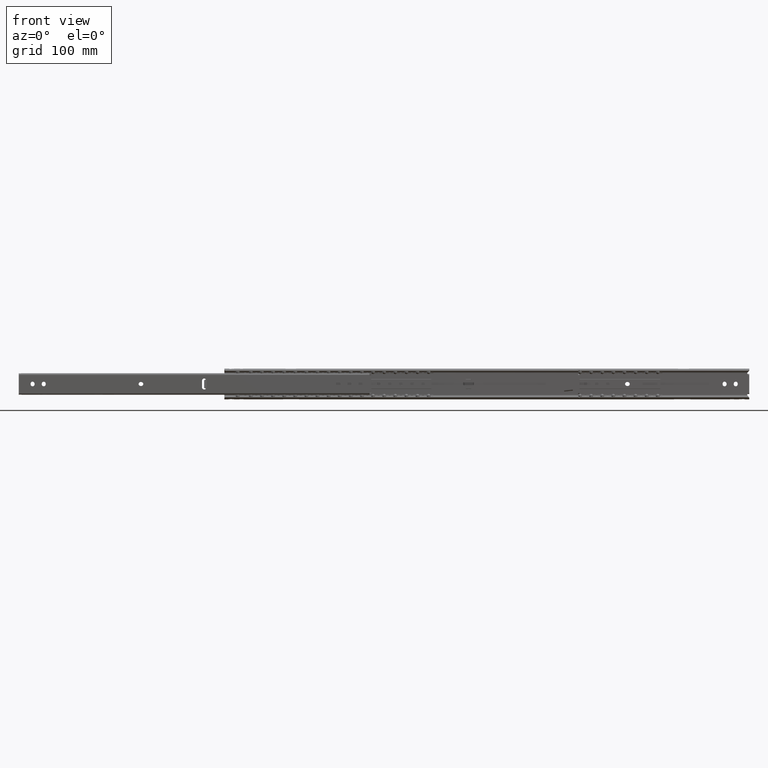
[diagram: clean part render]
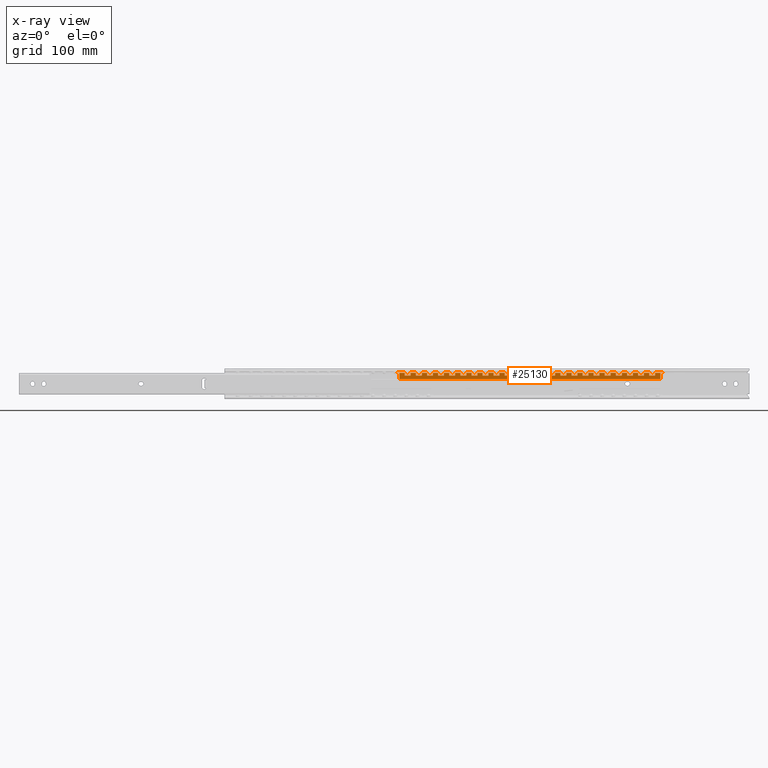
[diagram: x-ray — body ghosted, one internal face saturated and labeled with its STEP entity id]
A machine part, front view, then the same camera in x-ray: the body is ghosted and one INTERNAL B-rep face — a face not visible from any outside direction — is saturated and labeled: STEP entity #25130.
In plain terms, the highlighted face is a freeform B-spline surface patch.
Its self-contained STEP definition (entity closure, byte-faithful):
#8518=CARTESIAN_POINT('',(-2.100000000000045,-5.750000000000000,399.750000000000000));
#8519=VERTEX_POINT('',#8518);
#8650=CARTESIAN_POINT('',(-2.100000000000045,-12.611864406779700,399.750000000000000));
#8651=VERTEX_POINT('',#8650);
#8657=CARTESIAN_POINT('',(-2.100000000000045,-5.750000000000000,399.750000000000000));
#8658=CARTESIAN_POINT('',(-2.100000000000045,-12.611864406779700,399.750000000000000));
#8659=QUASI_UNIFORM_CURVE('',1,(#8657,#8658),.UNSPECIFIED.,.F.,.U.);
#8660=EDGE_CURVE('',#8519,#8651,#8659,.T.);
#8670=CARTESIAN_POINT('',(-2.100000000000045,-12.611864406779640,101.650000000000010));
#8671=VERTEX_POINT('',#8670);
#8794=CARTESIAN_POINT('',(-2.100000000000045,-5.750000000000000,101.650000000000010));
#8795=VERTEX_POINT('',#8794);
#8809=CARTESIAN_POINT('',(-2.100000000000045,-12.611864406779640,101.650000000000010));
#8810=CARTESIAN_POINT('',(-2.100000000000045,-5.750000000000000,101.650000000000010));
#8811=QUASI_UNIFORM_CURVE('',1,(#8809,#8810),.UNSPECIFIED.,.F.,.U.);
#8812=EDGE_CURVE('',#8671,#8795,#8811,.T.);
#9044=CARTESIAN_POINT('',(-2.100000000000045,-12.648548000000000,107.650000000000010));
#9045=VERTEX_POINT('',#9044);
#9046=CARTESIAN_POINT('',(-2.100000000000000,-9.500000000000000,107.650000000000010));
#9047=VERTEX_POINT('',#9046);
#9048=CARTESIAN_POINT('',(-2.100000000000045,-12.648548000000000,107.650000000000010));
#9049=CARTESIAN_POINT('',(-2.100000000000000,-9.500000000000000,107.650000000000010));
#9050=QUASI_UNIFORM_CURVE('',1,(#9048,#9049),.UNSPECIFIED.,.F.,.U.);
#9051=EDGE_CURVE('',#9045,#9047,#9050,.T.);
#9101=CARTESIAN_POINT('',(-2.100000000000000,-9.500000000000000,114.349999999999990));
#9102=VERTEX_POINT('',#9101);
#9103=CARTESIAN_POINT('',(-2.100000000000045,-12.648548000000000,114.349999999999990));
#9104=VERTEX_POINT('',#9103);
#9105=CARTESIAN_POINT('',(-2.100000000000000,-9.500000000000000,114.349999999999990));
#9106=CARTESIAN_POINT('',(-2.100000000000045,-12.648548000000000,114.349999999999990));
#9107=QUASI_UNIFORM_CURVE('',1,(#9105,#9106),.UNSPECIFIED.,.F.,.U.);
#9108=EDGE_CURVE('',#9102,#9104,#9107,.T.);
#9230=CARTESIAN_POINT('',(-2.100000000000000,-9.500000000000000,127.050000000000000));
#9231=VERTEX_POINT('',#9230);
#9232=CARTESIAN_POINT('',(-2.100000000000045,-12.648548000000000,127.050000000000000));
#9233=VERTEX_POINT('',#9232);
#9234=CARTESIAN_POINT('',(-2.100000000000000,-9.500000000000000,127.050000000000000));
#9235=CARTESIAN_POINT('',(-2.100000000000045,-12.648548000000000,127.050000000000000));
#9236=QUASI_UNIFORM_CURVE('',1,(#9234,#9235),.UNSPECIFIED.,.F.,.U.);
#9237=EDGE_CURVE('',#9231,#9233,#9236,.T.);
#9287=CARTESIAN_POINT('',(-2.100000000000045,-12.648548000000000,120.349999999999990));
#9288=VERTEX_POINT('',#9287);
#9289=CARTESIAN_POINT('',(-2.100000000000000,-9.500000000000000,120.349999999999990));
#9290=VERTEX_POINT('',#9289);
#9291=CARTESIAN_POINT('',(-2.100000000000045,-12.648548000000000,120.349999999999990));
#9292=CARTESIAN_POINT('',(-2.100000000000000,-9.500000000000000,120.349999999999990));
#9293=QUASI_UNIFORM_CURVE('',1,(#9291,#9292),.UNSPECIFIED.,.F.,.U.);
#9294=EDGE_CURVE('',#9288,#9290,#9293,.T.);
#9602=CARTESIAN_POINT('',(-2.100000000000000,-9.500000000000000,139.750000000000000));
#9603=VERTEX_POINT('',#9602);
#9604=CARTESIAN_POINT('',(-2.100000000000045,-12.648548000000000,139.750000000000000));
#9605=VERTEX_POINT('',#9604);
#9606=CARTESIAN_POINT('',(-2.100000000000000,-9.500000000000000,139.750000000000000));
#9607=CARTESIAN_POINT('',(-2.100000000000045,-12.648548000000000,139.750000000000000));
#9608=QUASI_UNIFORM_CURVE('',1,(#9606,#9607),.UNSPECIFIED.,.F.,.U.);
#9609=EDGE_CURVE('',#9603,#9605,#9608,.T.);
#9659=CARTESIAN_POINT('',(-2.100000000000045,-12.648548000000000,133.050000000000010));
#9660=VERTEX_POINT('',#9659);
#9661=CARTESIAN_POINT('',(-2.100000000000000,-9.500000000000000,133.050000000000010));
#9662=VERTEX_POINT('',#9661);
#9663=CARTESIAN_POINT('',(-2.100000000000045,-12.648548000000000,133.050000000000010));
#9664=CARTESIAN_POINT('',(-2.100000000000000,-9.500000000000000,133.050000000000010));
#9665=QUASI_UNIFORM_CURVE('',1,(#9663,#9664),.UNSPECIFIED.,.F.,.U.);
#9666=EDGE_CURVE('',#9660,#9662,#9665,.T.);
#9974=CARTESIAN_POINT('',(-2.100000000000000,-9.500000000000000,152.449999999999990));
#9975=VERTEX_POINT('',#9974);
#9976=CARTESIAN_POINT('',(-2.100000000000045,-12.648548000000000,152.449999999999990));
#9977=VERTEX_POINT('',#9976);
#9978=CARTESIAN_POINT('',(-2.100000000000000,-9.500000000000000,152.449999999999990));
#9979=CARTESIAN_POINT('',(-2.100000000000045,-12.648548000000000,152.449999999999990));
#9980=QUASI_UNIFORM_CURVE('',1,(#9978,#9979),.UNSPECIFIED.,.F.,.U.);
#9981=EDGE_CURVE('',#9975,#9977,#9980,.T.);
#10031=CARTESIAN_POINT('',(-2.100000000000045,-12.648548000000000,145.750000000000000));
#10032=VERTEX_POINT('',#10031);
#10033=CARTESIAN_POINT('',(-2.100000000000000,-9.500000000000000,145.750000000000000));
#10034=VERTEX_POINT('',#10033);
#10035=CARTESIAN_POINT('',(-2.100000000000045,-12.648548000000000,145.750000000000000));
#10036=CARTESIAN_POINT('',(-2.100000000000000,-9.500000000000000,145.750000000000000));
#10037=QUASI_UNIFORM_CURVE('',1,(#10035,#10036),.UNSPECIFIED.,.F.,.U.);
#10038=EDGE_CURVE('',#10032,#10034,#10037,.T.);
#10346=CARTESIAN_POINT('',(-2.100000000000000,-9.500000000000000,165.150000000000010));
#10347=VERTEX_POINT('',#10346);
#10348=CARTESIAN_POINT('',(-2.100000000000045,-12.648548000000000,165.150000000000010));
#10349=VERTEX_POINT('',#10348);
#10350=CARTESIAN_POINT('',(-2.100000000000000,-9.500000000000000,165.150000000000010));
#10351=CARTESIAN_POINT('',(-2.100000000000045,-12.648548000000000,165.150000000000010));
#10352=QUASI_UNIFORM_CURVE('',1,(#10350,#10351),.UNSPECIFIED.,.F.,.U.);
#10353=EDGE_CURVE('',#10347,#10349,#10352,.T.);
#10403=CARTESIAN_POINT('',(-2.100000000000045,-12.648548000000000,158.449999999999990));
#10404=VERTEX_POINT('',#10403);
#10405=CARTESIAN_POINT('',(-2.100000000000000,-9.500000000000000,158.449999999999990));
#10406=VERTEX_POINT('',#10405);
#10407=CARTESIAN_POINT('',(-2.100000000000045,-12.648548000000000,158.449999999999990));
#10408=CARTESIAN_POINT('',(-2.100000000000000,-9.500000000000000,158.449999999999990));
#10409=QUASI_UNIFORM_CURVE('',1,(#10407,#10408),.UNSPECIFIED.,.F.,.U.);
#10410=EDGE_CURVE('',#10404,#10406,#10409,.T.);
#10718=CARTESIAN_POINT('',(-2.100000000000000,-9.500000000000000,177.849999999999990));
#10719=VERTEX_POINT('',#10718);
#10720=CARTESIAN_POINT('',(-2.100000000000045,-12.648548000000000,177.849999999999990));
#10721=VERTEX_POINT('',#10720);
#10722=CARTESIAN_POINT('',(-2.100000000000000,-9.500000000000000,177.849999999999990));
#10723=CARTESIAN_POINT('',(-2.100000000000045,-12.648548000000000,177.849999999999990));
#10724=QUASI_UNIFORM_CURVE('',1,(#10722,#10723),.UNSPECIFIED.,.F.,.U.);
#10725=EDGE_CURVE('',#10719,#10721,#10724,.T.);
#10775=CARTESIAN_POINT('',(-2.100000000000045,-12.648548000000000,171.150000000000010));
#10776=VERTEX_POINT('',#10775);
#10777=CARTESIAN_POINT('',(-2.100000000000000,-9.500000000000000,171.150000000000010));
#10778=VERTEX_POINT('',#10777);
#10779=CARTESIAN_POINT('',(-2.100000000000045,-12.648548000000000,171.150000000000010));
#10780=CARTESIAN_POINT('',(-2.100000000000000,-9.500000000000000,171.150000000000010));
#10781=QUASI_UNIFORM_CURVE('',1,(#10779,#10780),.UNSPECIFIED.,.F.,.U.);
#10782=EDGE_CURVE('',#10776,#10778,#10781,.T.);
#11090=CARTESIAN_POINT('',(-2.100000000000000,-9.500000000000000,190.550000000000010));
#11091=VERTEX_POINT('',#11090);
#11092=CARTESIAN_POINT('',(-2.100000000000045,-12.648548000000000,190.550000000000010));
#11093=VERTEX_POINT('',#11092);
#11094=CARTESIAN_POINT('',(-2.100000000000000,-9.500000000000000,190.550000000000010));
#11095=CARTESIAN_POINT('',(-2.100000000000045,-12.648548000000000,190.550000000000010));
#11096=QUASI_UNIFORM_CURVE('',1,(#11094,#11095),.UNSPECIFIED.,.F.,.U.);
#11097=EDGE_CURVE('',#11091,#11093,#11096,.T.);
#11147=CARTESIAN_POINT('',(-2.100000000000045,-12.648548000000000,183.849999999999990));
#11148=VERTEX_POINT('',#11147);
#11149=CARTESIAN_POINT('',(-2.100000000000000,-9.500000000000000,183.849999999999990));
#11150=VERTEX_POINT('',#11149);
#11151=CARTESIAN_POINT('',(-2.100000000000045,-12.648548000000000,183.849999999999990));
#11152=CARTESIAN_POINT('',(-2.100000000000000,-9.500000000000000,183.849999999999990));
#11153=QUASI_UNIFORM_CURVE('',1,(#11151,#11152),.UNSPECIFIED.,.F.,.U.);
#11154=EDGE_CURVE('',#11148,#11150,#11153,.T.);
#11462=CARTESIAN_POINT('',(-2.100000000000000,-9.500000000000000,203.250000000000000));
#11463=VERTEX_POINT('',#11462);
#11464=CARTESIAN_POINT('',(-2.100000000000045,-12.648548000000000,203.250000000000000));
#11465=VERTEX_POINT('',#11464);
#11466=CARTESIAN_POINT('',(-2.100000000000000,-9.500000000000000,203.250000000000000));
#11467=CARTESIAN_POINT('',(-2.100000000000045,-12.648548000000000,203.250000000000000));
#11468=QUASI_UNIFORM_CURVE('',1,(#11466,#11467),.UNSPECIFIED.,.F.,.U.);
#11469=EDGE_CURVE('',#11463,#11465,#11468,.T.);
#11519=CARTESIAN_POINT('',(-2.100000000000045,-12.648548000000000,196.550000000000010));
#11520=VERTEX_POINT('',#11519);
#11521=CARTESIAN_POINT('',(-2.100000000000000,-9.500000000000000,196.550000000000010));
#11522=VERTEX_POINT('',#11521);
#11523=CARTESIAN_POINT('',(-2.100000000000045,-12.648548000000000,196.550000000000010));
#11524=CARTESIAN_POINT('',(-2.100000000000000,-9.500000000000000,196.550000000000010));
#11525=QUASI_UNIFORM_CURVE('',1,(#11523,#11524),.UNSPECIFIED.,.F.,.U.);
#11526=EDGE_CURVE('',#11520,#11522,#11525,.T.);
#11834=CARTESIAN_POINT('',(-2.100000000000000,-9.500000000000000,215.949999999999990));
#11835=VERTEX_POINT('',#11834);
#11836=CARTESIAN_POINT('',(-2.100000000000045,-12.648548000000000,215.949999999999990));
#11837=VERTEX_POINT('',#11836);
#11838=CARTESIAN_POINT('',(-2.100000000000000,-9.500000000000000,215.949999999999990));
#11839=CARTESIAN_POINT('',(-2.100000000000045,-12.648548000000000,215.949999999999990));
#11840=QUASI_UNIFORM_CURVE('',1,(#11838,#11839),.UNSPECIFIED.,.F.,.U.);
#11841=EDGE_CURVE('',#11835,#11837,#11840,.T.);
#11891=CARTESIAN_POINT('',(-2.100000000000045,-12.648548000000000,209.250000000000000));
#11892=VERTEX_POINT('',#11891);
#11893=CARTESIAN_POINT('',(-2.100000000000000,-9.500000000000000,209.250000000000000));
#11894=VERTEX_POINT('',#11893);
#11895=CARTESIAN_POINT('',(-2.100000000000045,-12.648548000000000,209.250000000000000));
#11896=CARTESIAN_POINT('',(-2.100000000000000,-9.500000000000000,209.250000000000000));
#11897=QUASI_UNIFORM_CURVE('',1,(#11895,#11896),.UNSPECIFIED.,.F.,.U.);
#11898=EDGE_CURVE('',#11892,#11894,#11897,.T.);
#12206=CARTESIAN_POINT('',(-2.100000000000000,-9.500000000000000,228.650000000000010));
#12207=VERTEX_POINT('',#12206);
#12208=CARTESIAN_POINT('',(-2.100000000000045,-12.648548000000000,228.650000000000010));
#12209=VERTEX_POINT('',#12208);
#12210=CARTESIAN_POINT('',(-2.100000000000000,-9.500000000000000,228.650000000000010));
#12211=CARTESIAN_POINT('',(-2.100000000000045,-12.648548000000000,228.650000000000010));
#12212=QUASI_UNIFORM_CURVE('',1,(#12210,#12211),.UNSPECIFIED.,.F.,.U.);
#12213=EDGE_CURVE('',#12207,#12209,#12212,.T.);
#12263=CARTESIAN_POINT('',(-2.100000000000045,-12.648548000000000,221.949999999999990));
#12264=VERTEX_POINT('',#12263);
#12265=CARTESIAN_POINT('',(-2.100000000000000,-9.500000000000000,221.949999999999990));
#12266=VERTEX_POINT('',#12265);
#12267=CARTESIAN_POINT('',(-2.100000000000045,-12.648548000000000,221.949999999999990));
#12268=CARTESIAN_POINT('',(-2.100000000000000,-9.500000000000000,221.949999999999990));
#12269=QUASI_UNIFORM_CURVE('',1,(#12267,#12268),.UNSPECIFIED.,.F.,.U.);
#12270=EDGE_CURVE('',#12264,#12266,#12269,.T.);
#12578=CARTESIAN_POINT('',(-2.100000000000000,-9.500000000000000,241.349999999999990));
#12579=VERTEX_POINT('',#12578);
#12580=CARTESIAN_POINT('',(-2.100000000000045,-12.648548000000000,241.349999999999990));
#12581=VERTEX_POINT('',#12580);
#12582=CARTESIAN_POINT('',(-2.100000000000000,-9.500000000000000,241.349999999999990));
#12583=CARTESIAN_POINT('',(-2.100000000000045,-12.648548000000000,241.349999999999990));
#12584=QUASI_UNIFORM_CURVE('',1,(#12582,#12583),.UNSPECIFIED.,.F.,.U.);
#12585=EDGE_CURVE('',#12579,#12581,#12584,.T.);
#12635=CARTESIAN_POINT('',(-2.100000000000045,-12.648548000000000,234.650000000000010));
#12636=VERTEX_POINT('',#12635);
#12637=CARTESIAN_POINT('',(-2.100000000000000,-9.500000000000000,234.650000000000010));
#12638=VERTEX_POINT('',#12637);
#12639=CARTESIAN_POINT('',(-2.100000000000045,-12.648548000000000,234.650000000000010));
#12640=CARTESIAN_POINT('',(-2.100000000000000,-9.500000000000000,234.650000000000010));
#12641=QUASI_UNIFORM_CURVE('',1,(#12639,#12640),.UNSPECIFIED.,.F.,.U.);
#12642=EDGE_CURVE('',#12636,#12638,#12641,.T.);
#12950=CARTESIAN_POINT('',(-2.100000000000000,-9.500000000000000,254.050000000000010));
#12951=VERTEX_POINT('',#12950);
#12952=CARTESIAN_POINT('',(-2.100000000000045,-12.648548000000000,254.050000000000010));
#12953=VERTEX_POINT('',#12952);
#12954=CARTESIAN_POINT('',(-2.100000000000000,-9.500000000000000,254.050000000000010));
#12955=CARTESIAN_POINT('',(-2.100000000000045,-12.648548000000000,254.050000000000010));
#12956=QUASI_UNIFORM_CURVE('',1,(#12954,#12955),.UNSPECIFIED.,.F.,.U.);
#12957=EDGE_CURVE('',#12951,#12953,#12956,.T.);
#13007=CARTESIAN_POINT('',(-2.100000000000045,-12.648548000000000,247.349999999999990));
#13008=VERTEX_POINT('',#13007);
#13009=CARTESIAN_POINT('',(-2.100000000000000,-9.500000000000000,247.349999999999990));
#13010=VERTEX_POINT('',#13009);
#13011=CARTESIAN_POINT('',(-2.100000000000045,-12.648548000000000,247.349999999999990));
#13012=CARTESIAN_POINT('',(-2.100000000000000,-9.500000000000000,247.349999999999990));
#13013=QUASI_UNIFORM_CURVE('',1,(#13011,#13012),.UNSPECIFIED.,.F.,.U.);
#13014=EDGE_CURVE('',#13008,#13010,#13013,.T.);
#13322=CARTESIAN_POINT('',(-2.100000000000000,-9.500000000000000,266.750000000000000));
#13323=VERTEX_POINT('',#13322);
#13324=CARTESIAN_POINT('',(-2.100000000000045,-12.648548000000000,266.750000000000000));
#13325=VERTEX_POINT('',#13324);
#13326=CARTESIAN_POINT('',(-2.100000000000000,-9.500000000000000,266.750000000000000));
#13327=CARTESIAN_POINT('',(-2.100000000000045,-12.648548000000000,266.750000000000000));
#13328=QUASI_UNIFORM_CURVE('',1,(#13326,#13327),.UNSPECIFIED.,.F.,.U.);
#13329=EDGE_CURVE('',#13323,#13325,#13328,.T.);
#13379=CARTESIAN_POINT('',(-2.100000000000045,-12.648548000000000,260.050000000000010));
#13380=VERTEX_POINT('',#13379);
#13381=CARTESIAN_POINT('',(-2.100000000000000,-9.500000000000000,260.050000000000010));
#13382=VERTEX_POINT('',#13381);
#13383=CARTESIAN_POINT('',(-2.100000000000045,-12.648548000000000,260.050000000000010));
#13384=CARTESIAN_POINT('',(-2.100000000000000,-9.500000000000000,260.050000000000010));
#13385=QUASI_UNIFORM_CURVE('',1,(#13383,#13384),.UNSPECIFIED.,.F.,.U.);
#13386=EDGE_CURVE('',#13380,#13382,#13385,.T.);
#13694=CARTESIAN_POINT('',(-2.100000000000000,-9.500000000000000,279.449999999999990));
#13695=VERTEX_POINT('',#13694);
#13696=CARTESIAN_POINT('',(-2.100000000000045,-12.648548000000000,279.449999999999990));
#13697=VERTEX_POINT('',#13696);
#13698=CARTESIAN_POINT('',(-2.100000000000000,-9.500000000000000,279.449999999999990));
#13699=CARTESIAN_POINT('',(-2.100000000000045,-12.648548000000000,279.449999999999990));
#13700=QUASI_UNIFORM_CURVE('',1,(#13698,#13699),.UNSPECIFIED.,.F.,.U.);
#13701=EDGE_CURVE('',#13695,#13697,#13700,.T.);
#13751=CARTESIAN_POINT('',(-2.100000000000045,-12.648548000000000,272.750000000000000));
#13752=VERTEX_POINT('',#13751);
#13753=CARTESIAN_POINT('',(-2.100000000000000,-9.500000000000000,272.750000000000000));
#13754=VERTEX_POINT('',#13753);
#13755=CARTESIAN_POINT('',(-2.100000000000045,-12.648548000000000,272.750000000000000));
#13756=CARTESIAN_POINT('',(-2.100000000000000,-9.500000000000000,272.750000000000000));
#13757=QUASI_UNIFORM_CURVE('',1,(#13755,#13756),.UNSPECIFIED.,.F.,.U.);
#13758=EDGE_CURVE('',#13752,#13754,#13757,.T.);
#14066=CARTESIAN_POINT('',(-2.100000000000000,-9.500000000000000,292.149999999999980));
#14067=VERTEX_POINT('',#14066);
#14068=CARTESIAN_POINT('',(-2.100000000000045,-12.648548000000000,292.149999999999980));
#14069=VERTEX_POINT('',#14068);
#14070=CARTESIAN_POINT('',(-2.100000000000000,-9.500000000000000,292.149999999999980));
#14071=CARTESIAN_POINT('',(-2.100000000000045,-12.648548000000000,292.149999999999980));
#14072=QUASI_UNIFORM_CURVE('',1,(#14070,#14071),.UNSPECIFIED.,.F.,.U.);
#14073=EDGE_CURVE('',#14067,#14069,#14072,.T.);
#14123=CARTESIAN_POINT('',(-2.100000000000045,-12.648548000000000,285.449999999999990));
#14124=VERTEX_POINT('',#14123);
#14125=CARTESIAN_POINT('',(-2.100000000000000,-9.500000000000000,285.449999999999990));
#14126=VERTEX_POINT('',#14125);
#14127=CARTESIAN_POINT('',(-2.100000000000045,-12.648548000000000,285.449999999999990));
#14128=CARTESIAN_POINT('',(-2.100000000000000,-9.500000000000000,285.449999999999990));
#14129=QUASI_UNIFORM_CURVE('',1,(#14127,#14128),.UNSPECIFIED.,.F.,.U.);
#14130=EDGE_CURVE('',#14124,#14126,#14129,.T.);
#14438=CARTESIAN_POINT('',(-2.100000000000000,-9.500000000000000,304.850000000000020));
#14439=VERTEX_POINT('',#14438);
#14440=CARTESIAN_POINT('',(-2.100000000000045,-12.648548000000000,304.850000000000020));
#14441=VERTEX_POINT('',#14440);
#14442=CARTESIAN_POINT('',(-2.100000000000000,-9.500000000000000,304.850000000000020));
#14443=CARTESIAN_POINT('',(-2.100000000000045,-12.648548000000000,304.850000000000020));
#14444=QUASI_UNIFORM_CURVE('',1,(#14442,#14443),.UNSPECIFIED.,.F.,.U.);
#14445=EDGE_CURVE('',#14439,#14441,#14444,.T.);
#14495=CARTESIAN_POINT('',(-2.100000000000045,-12.648548000000000,298.149999999999980));
#14496=VERTEX_POINT('',#14495);
#14497=CARTESIAN_POINT('',(-2.100000000000000,-9.500000000000000,298.149999999999980));
#14498=VERTEX_POINT('',#14497);
#14499=CARTESIAN_POINT('',(-2.100000000000045,-12.648548000000000,298.149999999999980));
#14500=CARTESIAN_POINT('',(-2.100000000000000,-9.500000000000000,298.149999999999980));
#14501=QUASI_UNIFORM_CURVE('',1,(#14499,#14500),.UNSPECIFIED.,.F.,.U.);
#14502=EDGE_CURVE('',#14496,#14498,#14501,.T.);
#14810=CARTESIAN_POINT('',(-2.100000000000000,-9.500000000000000,317.550000000000010));
#14811=VERTEX_POINT('',#14810);
#14812=CARTESIAN_POINT('',(-2.100000000000045,-12.648548000000000,317.550000000000010));
#14813=VERTEX_POINT('',#14812);
#14814=CARTESIAN_POINT('',(-2.100000000000000,-9.500000000000000,317.550000000000010));
#14815=CARTESIAN_POINT('',(-2.100000000000045,-12.648548000000000,317.550000000000010));
#14816=QUASI_UNIFORM_CURVE('',1,(#14814,#14815),.UNSPECIFIED.,.F.,.U.);
#14817=EDGE_CURVE('',#14811,#14813,#14816,.T.);
#14867=CARTESIAN_POINT('',(-2.100000000000045,-12.648548000000000,310.850000000000020));
#14868=VERTEX_POINT('',#14867);
#14869=CARTESIAN_POINT('',(-2.100000000000000,-9.500000000000000,310.850000000000020));
#14870=VERTEX_POINT('',#14869);
#14871=CARTESIAN_POINT('',(-2.100000000000045,-12.648548000000000,310.850000000000020));
#14872=CARTESIAN_POINT('',(-2.100000000000000,-9.500000000000000,310.850000000000020));
#14873=QUASI_UNIFORM_CURVE('',1,(#14871,#14872),.UNSPECIFIED.,.F.,.U.);
#14874=EDGE_CURVE('',#14868,#14870,#14873,.T.);
#15182=CARTESIAN_POINT('',(-2.100000000000000,-9.500000000000000,330.250000000000000));
#15183=VERTEX_POINT('',#15182);
#15184=CARTESIAN_POINT('',(-2.100000000000045,-12.648548000000000,330.250000000000000));
#15185=VERTEX_POINT('',#15184);
#15186=CARTESIAN_POINT('',(-2.100000000000000,-9.500000000000000,330.250000000000000));
#15187=CARTESIAN_POINT('',(-2.100000000000045,-12.648548000000000,330.250000000000000));
#15188=QUASI_UNIFORM_CURVE('',1,(#15186,#15187),.UNSPECIFIED.,.F.,.U.);
#15189=EDGE_CURVE('',#15183,#15185,#15188,.T.);
#15239=CARTESIAN_POINT('',(-2.100000000000045,-12.648548000000000,323.550000000000010));
#15240=VERTEX_POINT('',#15239);
#15241=CARTESIAN_POINT('',(-2.100000000000000,-9.500000000000000,323.550000000000010));
#15242=VERTEX_POINT('',#15241);
#15243=CARTESIAN_POINT('',(-2.100000000000045,-12.648548000000000,323.550000000000010));
#15244=CARTESIAN_POINT('',(-2.100000000000000,-9.500000000000000,323.550000000000010));
#15245=QUASI_UNIFORM_CURVE('',1,(#15243,#15244),.UNSPECIFIED.,.F.,.U.);
#15246=EDGE_CURVE('',#15240,#15242,#15245,.T.);
#15554=CARTESIAN_POINT('',(-2.100000000000000,-9.500000000000000,342.949999999999990));
#15555=VERTEX_POINT('',#15554);
#15556=CARTESIAN_POINT('',(-2.100000000000045,-12.648548000000000,342.949999999999990));
#15557=VERTEX_POINT('',#15556);
#15558=CARTESIAN_POINT('',(-2.100000000000000,-9.500000000000000,342.949999999999990));
#15559=CARTESIAN_POINT('',(-2.100000000000045,-12.648548000000000,342.949999999999990));
#15560=QUASI_UNIFORM_CURVE('',1,(#15558,#15559),.UNSPECIFIED.,.F.,.U.);
#15561=EDGE_CURVE('',#15555,#15557,#15560,.T.);
#15611=CARTESIAN_POINT('',(-2.100000000000045,-12.648548000000000,336.250000000000000));
#15612=VERTEX_POINT('',#15611);
#15613=CARTESIAN_POINT('',(-2.100000000000000,-9.500000000000000,336.250000000000000));
#15614=VERTEX_POINT('',#15613);
#15615=CARTESIAN_POINT('',(-2.100000000000045,-12.648548000000000,336.250000000000000));
#15616=CARTESIAN_POINT('',(-2.100000000000000,-9.500000000000000,336.250000000000000));
#15617=QUASI_UNIFORM_CURVE('',1,(#15615,#15616),.UNSPECIFIED.,.F.,.U.);
#15618=EDGE_CURVE('',#15612,#15614,#15617,.T.);
#15926=CARTESIAN_POINT('',(-2.100000000000000,-9.500000000000000,355.649999999999980));
#15927=VERTEX_POINT('',#15926);
#15928=CARTESIAN_POINT('',(-2.100000000000045,-12.648548000000000,355.649999999999980));
#15929=VERTEX_POINT('',#15928);
#15930=CARTESIAN_POINT('',(-2.100000000000000,-9.500000000000000,355.649999999999980));
#15931=CARTESIAN_POINT('',(-2.100000000000045,-12.648548000000000,355.649999999999980));
#15932=QUASI_UNIFORM_CURVE('',1,(#15930,#15931),.UNSPECIFIED.,.F.,.U.);
#15933=EDGE_CURVE('',#15927,#15929,#15932,.T.);
#15983=CARTESIAN_POINT('',(-2.100000000000045,-12.648548000000000,348.949999999999990));
#15984=VERTEX_POINT('',#15983);
#15985=CARTESIAN_POINT('',(-2.100000000000000,-9.500000000000000,348.949999999999990));
#15986=VERTEX_POINT('',#15985);
#15987=CARTESIAN_POINT('',(-2.100000000000045,-12.648548000000000,348.949999999999990));
#15988=CARTESIAN_POINT('',(-2.100000000000000,-9.500000000000000,348.949999999999990));
#15989=QUASI_UNIFORM_CURVE('',1,(#15987,#15988),.UNSPECIFIED.,.F.,.U.);
#15990=EDGE_CURVE('',#15984,#15986,#15989,.T.);
#16298=CARTESIAN_POINT('',(-2.100000000000000,-9.500000000000000,368.350000000000020));
#16299=VERTEX_POINT('',#16298);
#16300=CARTESIAN_POINT('',(-2.100000000000045,-12.648548000000000,368.350000000000020));
#16301=VERTEX_POINT('',#16300);
#16302=CARTESIAN_POINT('',(-2.100000000000000,-9.500000000000000,368.350000000000020));
#16303=CARTESIAN_POINT('',(-2.100000000000045,-12.648548000000000,368.350000000000020));
#16304=QUASI_UNIFORM_CURVE('',1,(#16302,#16303),.UNSPECIFIED.,.F.,.U.);
#16305=EDGE_CURVE('',#16299,#16301,#16304,.T.);
#16355=CARTESIAN_POINT('',(-2.100000000000045,-12.648548000000000,361.649999999999980));
#16356=VERTEX_POINT('',#16355);
#16357=CARTESIAN_POINT('',(-2.100000000000000,-9.500000000000000,361.649999999999980));
#16358=VERTEX_POINT('',#16357);
#16359=CARTESIAN_POINT('',(-2.100000000000045,-12.648548000000000,361.649999999999980));
#16360=CARTESIAN_POINT('',(-2.100000000000000,-9.500000000000000,361.649999999999980));
#16361=QUASI_UNIFORM_CURVE('',1,(#16359,#16360),.UNSPECIFIED.,.F.,.U.);
#16362=EDGE_CURVE('',#16356,#16358,#16361,.T.);
#16670=CARTESIAN_POINT('',(-2.100000000000000,-9.500000000000000,381.050000000000010));
#16671=VERTEX_POINT('',#16670);
#16672=CARTESIAN_POINT('',(-2.100000000000045,-12.648548000000000,381.050000000000010));
#16673=VERTEX_POINT('',#16672);
#16674=CARTESIAN_POINT('',(-2.100000000000000,-9.500000000000000,381.050000000000010));
#16675=CARTESIAN_POINT('',(-2.100000000000045,-12.648548000000000,381.050000000000010));
#16676=QUASI_UNIFORM_CURVE('',1,(#16674,#16675),.UNSPECIFIED.,.F.,.U.);
#16677=EDGE_CURVE('',#16671,#16673,#16676,.T.);
#16727=CARTESIAN_POINT('',(-2.100000000000045,-12.648548000000000,374.350000000000020));
#16728=VERTEX_POINT('',#16727);
#16729=CARTESIAN_POINT('',(-2.100000000000000,-9.500000000000000,374.350000000000020));
#16730=VERTEX_POINT('',#16729);
#16731=CARTESIAN_POINT('',(-2.100000000000045,-12.648548000000000,374.350000000000020));
#16732=CARTESIAN_POINT('',(-2.100000000000000,-9.500000000000000,374.350000000000020));
#16733=QUASI_UNIFORM_CURVE('',1,(#16731,#16732),.UNSPECIFIED.,.F.,.U.);
#16734=EDGE_CURVE('',#16728,#16730,#16733,.T.);
#17042=CARTESIAN_POINT('',(-2.100000000000000,-9.500000000000000,393.750000000000000));
#17043=VERTEX_POINT('',#17042);
#17044=CARTESIAN_POINT('',(-2.100000000000045,-12.648548000000000,393.750000000000000));
#17045=VERTEX_POINT('',#17044);
#17046=CARTESIAN_POINT('',(-2.100000000000000,-9.500000000000000,393.750000000000000));
#17047=CARTESIAN_POINT('',(-2.100000000000045,-12.648548000000000,393.750000000000000));
#17048=QUASI_UNIFORM_CURVE('',1,(#17046,#17047),.UNSPECIFIED.,.F.,.U.);
#17049=EDGE_CURVE('',#17043,#17045,#17048,.T.);
#17099=CARTESIAN_POINT('',(-2.100000000000045,-12.648548000000000,387.050000000000010));
#17100=VERTEX_POINT('',#17099);
#17101=CARTESIAN_POINT('',(-2.100000000000000,-9.500000000000000,387.050000000000010));
#17102=VERTEX_POINT('',#17101);
#17103=CARTESIAN_POINT('',(-2.100000000000045,-12.648548000000000,387.050000000000010));
#17104=CARTESIAN_POINT('',(-2.100000000000000,-9.500000000000000,387.050000000000010));
#17105=QUASI_UNIFORM_CURVE('',1,(#17103,#17104),.UNSPECIFIED.,.F.,.U.);
#17106=EDGE_CURVE('',#17100,#17102,#17105,.T.);
#17454=CARTESIAN_POINT('',(-2.100000000000000,-9.500000000000000,107.650000000000010));
#17455=CARTESIAN_POINT('',(-2.100000000000000,-9.500000000000000,114.349999999999990));
#17456=QUASI_UNIFORM_CURVE('',1,(#17454,#17455),.UNSPECIFIED.,.F.,.U.);
#17457=EDGE_CURVE('',#9047,#9102,#17456,.T.);
#17474=CARTESIAN_POINT('',(-2.100000000000000,-9.500000000000000,120.349999999999990));
#17475=CARTESIAN_POINT('',(-2.100000000000000,-9.500000000000000,127.050000000000000));
#17476=QUASI_UNIFORM_CURVE('',1,(#17474,#17475),.UNSPECIFIED.,.F.,.U.);
#17477=EDGE_CURVE('',#9290,#9231,#17476,.T.);
#17626=CARTESIAN_POINT('',(-2.100000000000000,-9.500000000000000,133.050000000000010));
#17627=CARTESIAN_POINT('',(-2.100000000000000,-9.500000000000000,139.750000000000000));
#17628=QUASI_UNIFORM_CURVE('',1,(#17626,#17627),.UNSPECIFIED.,.F.,.U.);
#17629=EDGE_CURVE('',#9662,#9603,#17628,.T.);
#17778=CARTESIAN_POINT('',(-2.100000000000000,-9.500000000000000,145.750000000000000));
#17779=CARTESIAN_POINT('',(-2.100000000000000,-9.500000000000000,152.449999999999990));
#17780=QUASI_UNIFORM_CURVE('',1,(#17778,#17779),.UNSPECIFIED.,.F.,.U.);
#17781=EDGE_CURVE('',#10034,#9975,#17780,.T.);
#17930=CARTESIAN_POINT('',(-2.100000000000000,-9.500000000000000,158.449999999999990));
#17931=CARTESIAN_POINT('',(-2.100000000000000,-9.500000000000000,165.150000000000010));
#17932=QUASI_UNIFORM_CURVE('',1,(#17930,#17931),.UNSPECIFIED.,.F.,.U.);
#17933=EDGE_CURVE('',#10406,#10347,#17932,.T.);
#18082=CARTESIAN_POINT('',(-2.100000000000000,-9.500000000000000,171.150000000000010));
#18083=CARTESIAN_POINT('',(-2.100000000000000,-9.500000000000000,177.849999999999990));
#18084=QUASI_UNIFORM_CURVE('',1,(#18082,#18083),.UNSPECIFIED.,.F.,.U.);
#18085=EDGE_CURVE('',#10778,#10719,#18084,.T.);
#18234=CARTESIAN_POINT('',(-2.100000000000000,-9.500000000000000,183.849999999999990));
#18235=CARTESIAN_POINT('',(-2.100000000000000,-9.500000000000000,190.550000000000010));
#18236=QUASI_UNIFORM_CURVE('',1,(#18234,#18235),.UNSPECIFIED.,.F.,.U.);
#18237=EDGE_CURVE('',#11150,#11091,#18236,.T.);
#18386=CARTESIAN_POINT('',(-2.100000000000000,-9.500000000000000,196.550000000000010));
#18387=CARTESIAN_POINT('',(-2.100000000000000,-9.500000000000000,203.250000000000000));
#18388=QUASI_UNIFORM_CURVE('',1,(#18386,#18387),.UNSPECIFIED.,.F.,.U.);
#18389=EDGE_CURVE('',#11522,#11463,#18388,.T.);
#18538=CARTESIAN_POINT('',(-2.100000000000000,-9.500000000000000,209.250000000000000));
#18539=CARTESIAN_POINT('',(-2.100000000000000,-9.500000000000000,215.949999999999990));
#18540=QUASI_UNIFORM_CURVE('',1,(#18538,#18539),.UNSPECIFIED.,.F.,.U.);
#18541=EDGE_CURVE('',#11894,#11835,#18540,.T.);
#18690=CARTESIAN_POINT('',(-2.100000000000000,-9.500000000000000,221.949999999999990));
#18691=CARTESIAN_POINT('',(-2.100000000000000,-9.500000000000000,228.650000000000010));
#18692=QUASI_UNIFORM_CURVE('',1,(#18690,#18691),.UNSPECIFIED.,.F.,.U.);
#18693=EDGE_CURVE('',#12266,#12207,#18692,.T.);
#18842=CARTESIAN_POINT('',(-2.100000000000000,-9.500000000000000,234.650000000000010));
#18843=CARTESIAN_POINT('',(-2.100000000000000,-9.500000000000000,241.349999999999990));
#18844=QUASI_UNIFORM_CURVE('',1,(#18842,#18843),.UNSPECIFIED.,.F.,.U.);
#18845=EDGE_CURVE('',#12638,#12579,#18844,.T.);
#18994=CARTESIAN_POINT('',(-2.100000000000000,-9.500000000000000,247.349999999999990));
#18995=CARTESIAN_POINT('',(-2.100000000000000,-9.500000000000000,254.050000000000010));
#18996=QUASI_UNIFORM_CURVE('',1,(#18994,#18995),.UNSPECIFIED.,.F.,.U.);
#18997=EDGE_CURVE('',#13010,#12951,#18996,.T.);
#19146=CARTESIAN_POINT('',(-2.100000000000000,-9.500000000000000,260.050000000000010));
#19147=CARTESIAN_POINT('',(-2.100000000000000,-9.500000000000000,266.750000000000000));
#19148=QUASI_UNIFORM_CURVE('',1,(#19146,#19147),.UNSPECIFIED.,.F.,.U.);
#19149=EDGE_CURVE('',#13382,#13323,#19148,.T.);
#19298=CARTESIAN_POINT('',(-2.100000000000000,-9.500000000000000,272.750000000000000));
#19299=CARTESIAN_POINT('',(-2.100000000000000,-9.500000000000000,279.449999999999990));
#19300=QUASI_UNIFORM_CURVE('',1,(#19298,#19299),.UNSPECIFIED.,.F.,.U.);
#19301=EDGE_CURVE('',#13754,#13695,#19300,.T.);
#19450=CARTESIAN_POINT('',(-2.100000000000000,-9.500000000000000,285.449999999999990));
#19451=CARTESIAN_POINT('',(-2.100000000000000,-9.500000000000000,292.149999999999980));
#19452=QUASI_UNIFORM_CURVE('',1,(#19450,#19451),.UNSPECIFIED.,.F.,.U.);
#19453=EDGE_CURVE('',#14126,#14067,#19452,.T.);
#19602=CARTESIAN_POINT('',(-2.100000000000000,-9.500000000000000,298.149999999999980));
#19603=CARTESIAN_POINT('',(-2.100000000000000,-9.500000000000000,304.850000000000020));
#19604=QUASI_UNIFORM_CURVE('',1,(#19602,#19603),.UNSPECIFIED.,.F.,.U.);
#19605=EDGE_CURVE('',#14498,#14439,#19604,.T.);
#19754=CARTESIAN_POINT('',(-2.100000000000000,-9.500000000000000,310.850000000000020));
#19755=CARTESIAN_POINT('',(-2.100000000000000,-9.500000000000000,317.550000000000010));
#19756=QUASI_UNIFORM_CURVE('',1,(#19754,#19755),.UNSPECIFIED.,.F.,.U.);
#19757=EDGE_CURVE('',#14870,#14811,#19756,.T.);
#19906=CARTESIAN_POINT('',(-2.100000000000000,-9.500000000000000,323.550000000000010));
#19907=CARTESIAN_POINT('',(-2.100000000000000,-9.500000000000000,330.250000000000000));
#19908=QUASI_UNIFORM_CURVE('',1,(#19906,#19907),.UNSPECIFIED.,.F.,.U.);
#19909=EDGE_CURVE('',#15242,#15183,#19908,.T.);
#20058=CARTESIAN_POINT('',(-2.100000000000000,-9.500000000000000,336.250000000000000));
#20059=CARTESIAN_POINT('',(-2.100000000000000,-9.500000000000000,342.949999999999990));
#20060=QUASI_UNIFORM_CURVE('',1,(#20058,#20059),.UNSPECIFIED.,.F.,.U.);
#20061=EDGE_CURVE('',#15614,#15555,#20060,.T.);
#20210=CARTESIAN_POINT('',(-2.100000000000000,-9.500000000000000,348.949999999999990));
#20211=CARTESIAN_POINT('',(-2.100000000000000,-9.500000000000000,355.649999999999980));
#20212=QUASI_UNIFORM_CURVE('',1,(#20210,#20211),.UNSPECIFIED.,.F.,.U.);
#20213=EDGE_CURVE('',#15986,#15927,#20212,.T.);
#20362=CARTESIAN_POINT('',(-2.100000000000000,-9.500000000000000,361.649999999999980));
#20363=CARTESIAN_POINT('',(-2.100000000000000,-9.500000000000000,368.350000000000020));
#20364=QUASI_UNIFORM_CURVE('',1,(#20362,#20363),.UNSPECIFIED.,.F.,.U.);
#20365=EDGE_CURVE('',#16358,#16299,#20364,.T.);
#20514=CARTESIAN_POINT('',(-2.100000000000000,-9.500000000000000,374.350000000000020));
#20515=CARTESIAN_POINT('',(-2.100000000000000,-9.500000000000000,381.050000000000010));
#20516=QUASI_UNIFORM_CURVE('',1,(#20514,#20515),.UNSPECIFIED.,.F.,.U.);
#20517=EDGE_CURVE('',#16730,#16671,#20516,.T.);
#20666=CARTESIAN_POINT('',(-2.100000000000000,-9.500000000000000,387.050000000000010));
#20667=CARTESIAN_POINT('',(-2.100000000000000,-9.500000000000000,393.750000000000000));
#20668=QUASI_UNIFORM_CURVE('',1,(#20666,#20667),.UNSPECIFIED.,.F.,.U.);
#20669=EDGE_CURVE('',#17102,#17043,#20668,.T.);
#21417=CARTESIAN_POINT('',(-2.100000000000045,-5.750000000000000,101.650000000000010));
#21418=CARTESIAN_POINT('',(-2.100000000000045,-5.750000000000000,399.750000000000000));
#21419=QUASI_UNIFORM_CURVE('',1,(#21417,#21418),.UNSPECIFIED.,.F.,.U.);
#21420=EDGE_CURVE('',#8795,#8519,#21419,.T.);
#23841=CARTESIAN_POINT('',(-2.100000000000045,-12.648548000000000,402.0));
#23842=VERTEX_POINT('',#23841);
#23843=CARTESIAN_POINT('',(-2.100000000000045,-12.648548000000000,393.750000000000000));
#23844=CARTESIAN_POINT('',(-2.100000000000045,-12.648548000000000,402.0));
#23845=QUASI_UNIFORM_CURVE('',1,(#23843,#23844),.UNSPECIFIED.,.F.,.U.);
#23846=EDGE_CURVE('',#17045,#23842,#23845,.T.);
#23884=CARTESIAN_POINT('',(-2.100000000000045,-12.648548000000000,381.050000000000010));
#23885=CARTESIAN_POINT('',(-2.100000000000045,-12.648548000000000,387.050000000000010));
#23886=QUASI_UNIFORM_CURVE('',1,(#23884,#23885),.UNSPECIFIED.,.F.,.U.);
#23887=EDGE_CURVE('',#16673,#17100,#23886,.T.);
#23913=CARTESIAN_POINT('',(-2.100000000000045,-12.648548000000000,368.350000000000020));
#23914=CARTESIAN_POINT('',(-2.100000000000045,-12.648548000000000,374.350000000000020));
#23915=QUASI_UNIFORM_CURVE('',1,(#23913,#23914),.UNSPECIFIED.,.F.,.U.);
#23916=EDGE_CURVE('',#16301,#16728,#23915,.T.);
#23942=CARTESIAN_POINT('',(-2.100000000000045,-12.648548000000000,355.649999999999980));
#23943=CARTESIAN_POINT('',(-2.100000000000045,-12.648548000000000,361.649999999999980));
#23944=QUASI_UNIFORM_CURVE('',1,(#23942,#23943),.UNSPECIFIED.,.F.,.U.);
#23945=EDGE_CURVE('',#15929,#16356,#23944,.T.);
#23971=CARTESIAN_POINT('',(-2.100000000000045,-12.648548000000000,342.949999999999990));
#23972=CARTESIAN_POINT('',(-2.100000000000045,-12.648548000000000,348.949999999999990));
#23973=QUASI_UNIFORM_CURVE('',1,(#23971,#23972),.UNSPECIFIED.,.F.,.U.);
#23974=EDGE_CURVE('',#15557,#15984,#23973,.T.);
#24000=CARTESIAN_POINT('',(-2.100000000000045,-12.648548000000000,330.250000000000000));
#24001=CARTESIAN_POINT('',(-2.100000000000045,-12.648548000000000,336.250000000000000));
#24002=QUASI_UNIFORM_CURVE('',1,(#24000,#24001),.UNSPECIFIED.,.F.,.U.);
#24003=EDGE_CURVE('',#15185,#15612,#24002,.T.);
#24029=CARTESIAN_POINT('',(-2.100000000000045,-12.648548000000000,317.550000000000010));
#24030=CARTESIAN_POINT('',(-2.100000000000045,-12.648548000000000,323.550000000000010));
#24031=QUASI_UNIFORM_CURVE('',1,(#24029,#24030),.UNSPECIFIED.,.F.,.U.);
#24032=EDGE_CURVE('',#14813,#15240,#24031,.T.);
#24058=CARTESIAN_POINT('',(-2.100000000000045,-12.648548000000000,304.850000000000020));
#24059=CARTESIAN_POINT('',(-2.100000000000045,-12.648548000000000,310.850000000000020));
#24060=QUASI_UNIFORM_CURVE('',1,(#24058,#24059),.UNSPECIFIED.,.F.,.U.);
#24061=EDGE_CURVE('',#14441,#14868,#24060,.T.);
#24087=CARTESIAN_POINT('',(-2.100000000000045,-12.648548000000000,292.149999999999980));
#24088=CARTESIAN_POINT('',(-2.100000000000045,-12.648548000000000,298.149999999999980));
#24089=QUASI_UNIFORM_CURVE('',1,(#24087,#24088),.UNSPECIFIED.,.F.,.U.);
#24090=EDGE_CURVE('',#14069,#14496,#24089,.T.);
#24116=CARTESIAN_POINT('',(-2.100000000000045,-12.648548000000000,279.449999999999990));
#24117=CARTESIAN_POINT('',(-2.100000000000045,-12.648548000000000,285.449999999999990));
#24118=QUASI_UNIFORM_CURVE('',1,(#24116,#24117),.UNSPECIFIED.,.F.,.U.);
#24119=EDGE_CURVE('',#13697,#14124,#24118,.T.);
#24145=CARTESIAN_POINT('',(-2.100000000000045,-12.648548000000000,266.750000000000000));
#24146=CARTESIAN_POINT('',(-2.100000000000045,-12.648548000000000,272.750000000000000));
#24147=QUASI_UNIFORM_CURVE('',1,(#24145,#24146),.UNSPECIFIED.,.F.,.U.);
#24148=EDGE_CURVE('',#13325,#13752,#24147,.T.);
#24174=CARTESIAN_POINT('',(-2.100000000000045,-12.648548000000000,254.050000000000010));
#24175=CARTESIAN_POINT('',(-2.100000000000045,-12.648548000000000,260.050000000000010));
#24176=QUASI_UNIFORM_CURVE('',1,(#24174,#24175),.UNSPECIFIED.,.F.,.U.);
#24177=EDGE_CURVE('',#12953,#13380,#24176,.T.);
#24203=CARTESIAN_POINT('',(-2.100000000000045,-12.648548000000000,241.349999999999990));
#24204=CARTESIAN_POINT('',(-2.100000000000045,-12.648548000000000,247.349999999999990));
#24205=QUASI_UNIFORM_CURVE('',1,(#24203,#24204),.UNSPECIFIED.,.F.,.U.);
#24206=EDGE_CURVE('',#12581,#13008,#24205,.T.);
#24232=CARTESIAN_POINT('',(-2.100000000000045,-12.648548000000000,228.650000000000010));
#24233=CARTESIAN_POINT('',(-2.100000000000045,-12.648548000000000,234.650000000000010));
#24234=QUASI_UNIFORM_CURVE('',1,(#24232,#24233),.UNSPECIFIED.,.F.,.U.);
#24235=EDGE_CURVE('',#12209,#12636,#24234,.T.);
#24261=CARTESIAN_POINT('',(-2.100000000000045,-12.648548000000000,215.949999999999990));
#24262=CARTESIAN_POINT('',(-2.100000000000045,-12.648548000000000,221.949999999999990));
#24263=QUASI_UNIFORM_CURVE('',1,(#24261,#24262),.UNSPECIFIED.,.F.,.U.);
#24264=EDGE_CURVE('',#11837,#12264,#24263,.T.);
#24290=CARTESIAN_POINT('',(-2.100000000000045,-12.648548000000000,203.250000000000000));
#24291=CARTESIAN_POINT('',(-2.100000000000045,-12.648548000000000,209.250000000000000));
#24292=QUASI_UNIFORM_CURVE('',1,(#24290,#24291),.UNSPECIFIED.,.F.,.U.);
#24293=EDGE_CURVE('',#11465,#11892,#24292,.T.);
#24319=CARTESIAN_POINT('',(-2.100000000000045,-12.648548000000000,190.550000000000010));
#24320=CARTESIAN_POINT('',(-2.100000000000045,-12.648548000000000,196.550000000000010));
#24321=QUASI_UNIFORM_CURVE('',1,(#24319,#24320),.UNSPECIFIED.,.F.,.U.);
#24322=EDGE_CURVE('',#11093,#11520,#24321,.T.);
#24348=CARTESIAN_POINT('',(-2.100000000000045,-12.648548000000000,177.849999999999990));
#24349=CARTESIAN_POINT('',(-2.100000000000045,-12.648548000000000,183.849999999999990));
#24350=QUASI_UNIFORM_CURVE('',1,(#24348,#24349),.UNSPECIFIED.,.F.,.U.);
#24351=EDGE_CURVE('',#10721,#11148,#24350,.T.);
#24377=CARTESIAN_POINT('',(-2.100000000000045,-12.648548000000000,165.150000000000010));
#24378=CARTESIAN_POINT('',(-2.100000000000045,-12.648548000000000,171.150000000000010));
#24379=QUASI_UNIFORM_CURVE('',1,(#24377,#24378),.UNSPECIFIED.,.F.,.U.);
#24380=EDGE_CURVE('',#10349,#10776,#24379,.T.);
#24406=CARTESIAN_POINT('',(-2.100000000000045,-12.648548000000000,152.449999999999990));
#24407=CARTESIAN_POINT('',(-2.100000000000045,-12.648548000000000,158.449999999999990));
#24408=QUASI_UNIFORM_CURVE('',1,(#24406,#24407),.UNSPECIFIED.,.F.,.U.);
#24409=EDGE_CURVE('',#9977,#10404,#24408,.T.);
#24435=CARTESIAN_POINT('',(-2.100000000000045,-12.648548000000000,139.750000000000000));
#24436=CARTESIAN_POINT('',(-2.100000000000045,-12.648548000000000,145.750000000000000));
#24437=QUASI_UNIFORM_CURVE('',1,(#24435,#24436),.UNSPECIFIED.,.F.,.U.);
#24438=EDGE_CURVE('',#9605,#10032,#24437,.T.);
#24464=CARTESIAN_POINT('',(-2.100000000000045,-12.648548000000000,127.050000000000000));
#24465=CARTESIAN_POINT('',(-2.100000000000045,-12.648548000000000,133.050000000000010));
#24466=QUASI_UNIFORM_CURVE('',1,(#24464,#24465),.UNSPECIFIED.,.F.,.U.);
#24467=EDGE_CURVE('',#9233,#9660,#24466,.T.);
#24527=CARTESIAN_POINT('',(-2.100000000000045,-12.648548000000000,99.400000000000006));
#24528=VERTEX_POINT('',#24527);
#24529=CARTESIAN_POINT('',(-2.100000000000045,-12.648548000000000,99.400000000000006));
#24530=CARTESIAN_POINT('',(-2.100000000000045,-12.648548000000000,107.650000000000010));
#24531=QUASI_UNIFORM_CURVE('',1,(#24529,#24530),.UNSPECIFIED.,.F.,.U.);
#24532=EDGE_CURVE('',#24528,#9045,#24531,.T.);
#24578=CARTESIAN_POINT('',(-2.100000000000045,-12.648548000000000,114.349999999999990));
#24579=CARTESIAN_POINT('',(-2.100000000000045,-12.648548000000000,120.349999999999990));
#24580=QUASI_UNIFORM_CURVE('',1,(#24578,#24579),.UNSPECIFIED.,.F.,.U.);
#24581=EDGE_CURVE('',#9104,#9288,#24580,.T.);
#24792=CARTESIAN_POINT('',(-2.100000000000045,-12.611864406779640,99.400000000000006));
#24793=VERTEX_POINT('',#24792);
#24799=CARTESIAN_POINT('',(-2.100000000000045,-12.611864406779640,99.400000000000006));
#24800=CARTESIAN_POINT('',(-2.100000000000045,-12.648548000000000,99.400000000000006));
#24801=QUASI_UNIFORM_CURVE('',1,(#24799,#24800),.UNSPECIFIED.,.F.,.U.);
#24802=EDGE_CURVE('',#24793,#24528,#24801,.T.);
#24846=CARTESIAN_POINT('',(-2.100000000000045,-12.611864406779700,402.0));
#24847=VERTEX_POINT('',#24846);
#24848=CARTESIAN_POINT('',(-2.100000000000045,-12.611864406779700,402.0));
#24849=CARTESIAN_POINT('',(-2.100000000000045,-12.648548000000000,402.0));
#24850=QUASI_UNIFORM_CURVE('',1,(#24848,#24849),.UNSPECIFIED.,.F.,.U.);
#24851=EDGE_CURVE('',#24847,#23842,#24850,.T.);
#25015=CARTESIAN_POINT('',(-2.100000000000045,-5.405417540770722,84.285130586497502));
#25016=CARTESIAN_POINT('',(-2.100000000000045,-12.993130644262751,84.285130586497502));
#25017=CARTESIAN_POINT('',(-2.100000000000045,-5.405417540770722,417.114877529866990));
#25018=CARTESIAN_POINT('',(-2.100000000000045,-12.993130644262751,417.114877529866990));
#25019=B_SPLINE_SURFACE_WITH_KNOTS('',1,1,((#25015,#25017),(#25016,#25018)),.UNSPECIFIED.,.F.,.F.,.U.,(2,2),(2,2),(0.0,7.587713103492031),(0.0,332.829746943369510),.UNSPECIFIED.);
#25020=CARTESIAN_POINT('',(-2.100000000000045,-12.611864406779700,402.0));
#25021=CARTESIAN_POINT('',(-2.100000000000045,-12.611864406779700,399.750000000000000));
#25022=QUASI_UNIFORM_CURVE('',1,(#25020,#25021),.UNSPECIFIED.,.F.,.U.);
#25023=EDGE_CURVE('',#24847,#8651,#25022,.T.);
#25024=ORIENTED_EDGE('',*,*,#25023,.F.);
#25025=ORIENTED_EDGE('',*,*,#24851,.T.);
#25026=ORIENTED_EDGE('',*,*,#23846,.F.);
#25027=ORIENTED_EDGE('',*,*,#17049,.F.);
#25028=ORIENTED_EDGE('',*,*,#20669,.F.);
#25029=ORIENTED_EDGE('',*,*,#17106,.F.);
#25030=ORIENTED_EDGE('',*,*,#23887,.F.);
#25031=ORIENTED_EDGE('',*,*,#16677,.F.);
#25032=ORIENTED_EDGE('',*,*,#20517,.F.);
#25033=ORIENTED_EDGE('',*,*,#16734,.F.);
#25034=ORIENTED_EDGE('',*,*,#23916,.F.);
#25035=ORIENTED_EDGE('',*,*,#16305,.F.);
#25036=ORIENTED_EDGE('',*,*,#20365,.F.);
#25037=ORIENTED_EDGE('',*,*,#16362,.F.);
#25038=ORIENTED_EDGE('',*,*,#23945,.F.);
#25039=ORIENTED_EDGE('',*,*,#15933,.F.);
#25040=ORIENTED_EDGE('',*,*,#20213,.F.);
#25041=ORIENTED_EDGE('',*,*,#15990,.F.);
#25042=ORIENTED_EDGE('',*,*,#23974,.F.);
#25043=ORIENTED_EDGE('',*,*,#15561,.F.);
#25044=ORIENTED_EDGE('',*,*,#20061,.F.);
#25045=ORIENTED_EDGE('',*,*,#15618,.F.);
#25046=ORIENTED_EDGE('',*,*,#24003,.F.);
#25047=ORIENTED_EDGE('',*,*,#15189,.F.);
#25048=ORIENTED_EDGE('',*,*,#19909,.F.);
#25049=ORIENTED_EDGE('',*,*,#15246,.F.);
#25050=ORIENTED_EDGE('',*,*,#24032,.F.);
#25051=ORIENTED_EDGE('',*,*,#14817,.F.);
#25052=ORIENTED_EDGE('',*,*,#19757,.F.);
#25053=ORIENTED_EDGE('',*,*,#14874,.F.);
#25054=ORIENTED_EDGE('',*,*,#24061,.F.);
#25055=ORIENTED_EDGE('',*,*,#14445,.F.);
#25056=ORIENTED_EDGE('',*,*,#19605,.F.);
#25057=ORIENTED_EDGE('',*,*,#14502,.F.);
#25058=ORIENTED_EDGE('',*,*,#24090,.F.);
#25059=ORIENTED_EDGE('',*,*,#14073,.F.);
#25060=ORIENTED_EDGE('',*,*,#19453,.F.);
#25061=ORIENTED_EDGE('',*,*,#14130,.F.);
#25062=ORIENTED_EDGE('',*,*,#24119,.F.);
#25063=ORIENTED_EDGE('',*,*,#13701,.F.);
#25064=ORIENTED_EDGE('',*,*,#19301,.F.);
#25065=ORIENTED_EDGE('',*,*,#13758,.F.);
#25066=ORIENTED_EDGE('',*,*,#24148,.F.);
#25067=ORIENTED_EDGE('',*,*,#13329,.F.);
#25068=ORIENTED_EDGE('',*,*,#19149,.F.);
#25069=ORIENTED_EDGE('',*,*,#13386,.F.);
#25070=ORIENTED_EDGE('',*,*,#24177,.F.);
#25071=ORIENTED_EDGE('',*,*,#12957,.F.);
#25072=ORIENTED_EDGE('',*,*,#18997,.F.);
#25073=ORIENTED_EDGE('',*,*,#13014,.F.);
#25074=ORIENTED_EDGE('',*,*,#24206,.F.);
#25075=ORIENTED_EDGE('',*,*,#12585,.F.);
#25076=ORIENTED_EDGE('',*,*,#18845,.F.);
#25077=ORIENTED_EDGE('',*,*,#12642,.F.);
#25078=ORIENTED_EDGE('',*,*,#24235,.F.);
#25079=ORIENTED_EDGE('',*,*,#12213,.F.);
#25080=ORIENTED_EDGE('',*,*,#18693,.F.);
#25081=ORIENTED_EDGE('',*,*,#12270,.F.);
#25082=ORIENTED_EDGE('',*,*,#24264,.F.);
#25083=ORIENTED_EDGE('',*,*,#11841,.F.);
#25084=ORIENTED_EDGE('',*,*,#18541,.F.);
#25085=ORIENTED_EDGE('',*,*,#11898,.F.);
#25086=ORIENTED_EDGE('',*,*,#24293,.F.);
#25087=ORIENTED_EDGE('',*,*,#11469,.F.);
#25088=ORIENTED_EDGE('',*,*,#18389,.F.);
#25089=ORIENTED_EDGE('',*,*,#11526,.F.);
#25090=ORIENTED_EDGE('',*,*,#24322,.F.);
#25091=ORIENTED_EDGE('',*,*,#11097,.F.);
#25092=ORIENTED_EDGE('',*,*,#18237,.F.);
#25093=ORIENTED_EDGE('',*,*,#11154,.F.);
#25094=ORIENTED_EDGE('',*,*,#24351,.F.);
#25095=ORIENTED_EDGE('',*,*,#10725,.F.);
#25096=ORIENTED_EDGE('',*,*,#18085,.F.);
#25097=ORIENTED_EDGE('',*,*,#10782,.F.);
#25098=ORIENTED_EDGE('',*,*,#24380,.F.);
#25099=ORIENTED_EDGE('',*,*,#10353,.F.);
#25100=ORIENTED_EDGE('',*,*,#17933,.F.);
#25101=ORIENTED_EDGE('',*,*,#10410,.F.);
#25102=ORIENTED_EDGE('',*,*,#24409,.F.);
#25103=ORIENTED_EDGE('',*,*,#9981,.F.);
#25104=ORIENTED_EDGE('',*,*,#17781,.F.);
#25105=ORIENTED_EDGE('',*,*,#10038,.F.);
#25106=ORIENTED_EDGE('',*,*,#24438,.F.);
#25107=ORIENTED_EDGE('',*,*,#9609,.F.);
#25108=ORIENTED_EDGE('',*,*,#17629,.F.);
#25109=ORIENTED_EDGE('',*,*,#9666,.F.);
#25110=ORIENTED_EDGE('',*,*,#24467,.F.);
#25111=ORIENTED_EDGE('',*,*,#9237,.F.);
#25112=ORIENTED_EDGE('',*,*,#17477,.F.);
#25113=ORIENTED_EDGE('',*,*,#9294,.F.);
#25114=ORIENTED_EDGE('',*,*,#24581,.F.);
#25115=ORIENTED_EDGE('',*,*,#9108,.F.);
#25116=ORIENTED_EDGE('',*,*,#17457,.F.);
#25117=ORIENTED_EDGE('',*,*,#9051,.F.);
#25118=ORIENTED_EDGE('',*,*,#24532,.F.);
#25119=ORIENTED_EDGE('',*,*,#24802,.F.);
#25120=CARTESIAN_POINT('',(-2.100000000000045,-12.611864406779640,101.650000000000010));
#25121=CARTESIAN_POINT('',(-2.100000000000045,-12.611864406779640,99.400000000000006));
#25122=QUASI_UNIFORM_CURVE('',1,(#25120,#25121),.UNSPECIFIED.,.F.,.U.);
#25123=EDGE_CURVE('',#8671,#24793,#25122,.T.);
#25124=ORIENTED_EDGE('',*,*,#25123,.F.);
#25125=ORIENTED_EDGE('',*,*,#8812,.T.);
#25126=ORIENTED_EDGE('',*,*,#21420,.T.);
#25127=ORIENTED_EDGE('',*,*,#8660,.T.);
#25128=EDGE_LOOP('',(#25024,#25025,#25026,#25027,#25028,#25029,#25030,#25031,#25032,#25033,#25034,#25035,#25036,#25037,#25038,#25039,#25040,#25041,#25042,#25043,#25044,#25045,#25046,#25047,#25048,#25049,#25050,#25051,#25052,#25053,#25054,#25055,#25056,#25057,#25058,#25059,#25060,#25061,#25062,#25063,#25064,#25065,#25066,#25067,#25068,#25069,#25070,#25071,#25072,#25073,#25074,#25075,#25076,#25077,#25078,#25079,#25080,#25081,#25082,#25083,#25084,#25085,#25086,#25087,#25088,#25089,#25090,#25091,#25092,#25093,#25094,#25095,#25096,#25097,#25098,#25099,#25100,#25101,#25102,#25103,#25104,#25105,#25106,#25107,#25108,#25109,#25110,#25111,#25112,#25113,#25114,#25115,#25116,#25117,#25118,#25119,#25124,#25125,#25126,#25127));
#25129=FACE_OUTER_BOUND('',#25128,.T.);
#25130=ADVANCED_FACE('',(#25129),#25019,.F.);